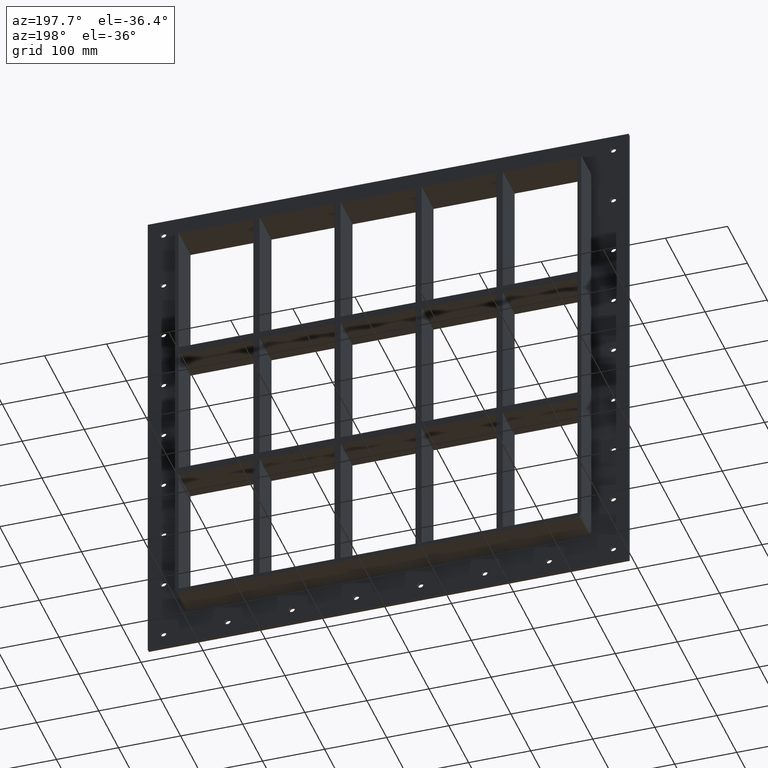
[diagram: clean part render]
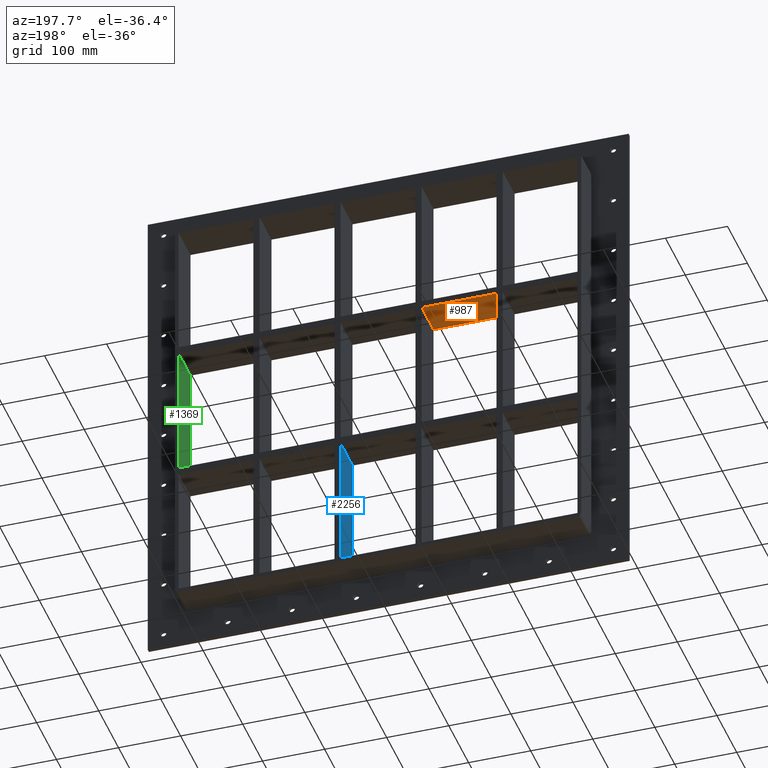
[diagram: same view with three faces highlighted in distinct colors, each labeled with its STEP entity id]
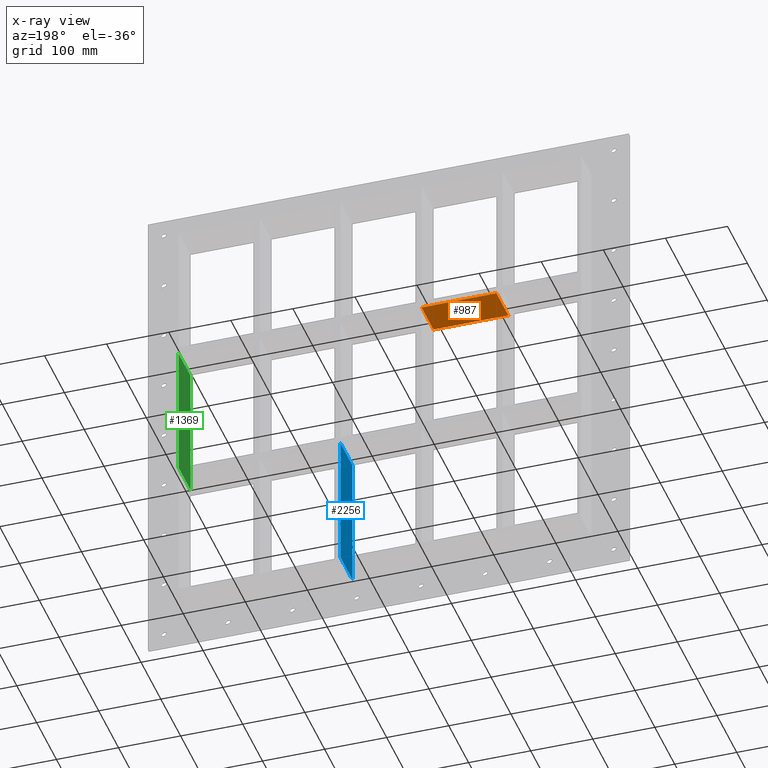
[diagram: x-ray of the same camera — body ghosted, the three highlighted faces saturated]
A machine part, auxiliary view with three faces highlighted in distinct colors.
The next image is the same camera in x-ray (body ghosted, the three faces saturated) — at least one of them is partly hidden behind the body in this view.
Their STEP definitions:

[orange] entity #987 — the highlighted planar face has unit normal (0, 0, -1).
#948=CARTESIAN_POINT('',(321.25,-3.0,108.99999999999069));
#949=DIRECTION('',(0.0,0.0,-1.0));
#950=DIRECTION('',(-1.0,0.0,0.0));
#951=AXIS2_PLACEMENT_3D('',#948,#949,#950);
#952=PLANE('',#951);
#953=CARTESIAN_POINT('',(-70.250000000001407,-3.0,108.99999999999068));
#954=VERTEX_POINT('',#953);
#955=CARTESIAN_POINT('',(-70.250000000001407,57.0,108.99999999999068));
#956=VERTEX_POINT('',#955);
#957=CARTESIAN_POINT('',(-70.25000000000135,-3.0,108.99999999999068));
#958=DIRECTION('',(0.0,1.0,0.0));
#959=VECTOR('',#958,60.0);
#960=LINE('',#957,#959);
#961=EDGE_CURVE('',#954,#956,#960,.T.);
#962=ORIENTED_EDGE('',*,*,#961,.F.);
#963=CARTESIAN_POINT('',(-190.75000000000728,-3.0,108.99999999999068));
#964=VERTEX_POINT('',#963);
#965=CARTESIAN_POINT('',(-70.250000000001421,-3.0,108.99999999999068));
#966=DIRECTION('',(-1.0,0.0,0.0));
#967=VECTOR('',#966,120.50000000000585);
#968=LINE('',#965,#967);
#969=EDGE_CURVE('',#954,#964,#968,.T.);
#970=ORIENTED_EDGE('',*,*,#969,.T.);
#971=CARTESIAN_POINT('',(-190.75000000000728,57.0,108.99999999999068));
#972=VERTEX_POINT('',#971);
#973=CARTESIAN_POINT('',(-190.75000000000728,57.0,108.99999999999068));
#974=DIRECTION('',(0.0,-1.0,0.0));
#975=VECTOR('',#974,60.0);
#976=LINE('',#973,#975);
#977=EDGE_CURVE('',#972,#964,#976,.T.);
#978=ORIENTED_EDGE('',*,*,#977,.F.);
#979=CARTESIAN_POINT('',(-70.250000000001421,57.0,108.99999999999068));
#980=DIRECTION('',(-1.0,0.0,0.0));
#981=VECTOR('',#980,120.50000000000585);
#982=LINE('',#979,#981);
#983=EDGE_CURVE('',#956,#972,#982,.T.);
#984=ORIENTED_EDGE('',*,*,#983,.F.);
#985=EDGE_LOOP('',(#962,#970,#978,#984));
#986=FACE_OUTER_BOUND('',#985,.T.);
#987=ADVANCED_FACE('',(#986),#952,.T.);

[blue] entity #2256 — the highlighted planar face has unit normal (-1, 0, 0).
#1978=CARTESIAN_POINT('',(60.249999999998707,57.0,-339.00000000000006));
#1979=VERTEX_POINT('',#1978);
#1980=CARTESIAN_POINT('',(60.249999999998678,57.0,-121.00000000000932));
#1981=VERTEX_POINT('',#1980);
#1982=CARTESIAN_POINT('',(60.249999999998707,57.0,-339.00000000000006));
#1983=DIRECTION('',(0.0,0.0,1.0));
#1984=VECTOR('',#1983,217.99999999999073);
#1985=LINE('',#1982,#1984);
#1986=EDGE_CURVE('',#1979,#1981,#1985,.T.);
#2226=CARTESIAN_POINT('',(60.249999999998707,-3.0,-339.00000000000006));
#2227=DIRECTION('',(-1.0,0.0,0.0));
#2228=DIRECTION('',(0.0,0.0,1.0));
#2229=AXIS2_PLACEMENT_3D('',#2226,#2227,#2228);
#2230=PLANE('',#2229);
#2231=CARTESIAN_POINT('',(60.249999999998678,-3.0,-121.00000000000932));
#2232=VERTEX_POINT('',#2231);
#2233=CARTESIAN_POINT('',(60.249999999998678,57.0,-121.00000000000931));
#2234=DIRECTION('',(0.0,-1.0,0.0));
#2235=VECTOR('',#2234,60.0);
#2236=LINE('',#2233,#2235);
#2237=EDGE_CURVE('',#1981,#2232,#2236,.T.);
#2238=ORIENTED_EDGE('',*,*,#2237,.F.);
#2239=ORIENTED_EDGE('',*,*,#1986,.F.);
#2240=CARTESIAN_POINT('',(60.249999999998707,-3.0,-339.00000000000006));
#2241=VERTEX_POINT('',#2240);
#2242=CARTESIAN_POINT('',(60.249999999998707,-3.0,-339.00000000000006));
#2243=DIRECTION('',(0.0,1.0,0.0));
#2244=VECTOR('',#2243,60.000000000000007);
#2245=LINE('',#2242,#2244);
#2246=EDGE_CURVE('',#2241,#1979,#2245,.T.);
#2247=ORIENTED_EDGE('',*,*,#2246,.F.);
#2248=CARTESIAN_POINT('',(60.249999999998707,-3.0,-339.00000000000006));
#2249=DIRECTION('',(0.0,0.0,1.0));
#2250=VECTOR('',#2249,217.99999999999073);
#2251=LINE('',#2248,#2250);
#2252=EDGE_CURVE('',#2241,#2232,#2251,.T.);
#2253=ORIENTED_EDGE('',*,*,#2252,.T.);
#2254=EDGE_LOOP('',(#2238,#2239,#2247,#2253));
#2255=FACE_OUTER_BOUND('',#2254,.T.);
#2256=ADVANCED_FACE('',(#2255),#2230,.T.);

[green] entity #1369 — the highlighted planar face has unit normal (1, 0, 0).
#1043=CARTESIAN_POINT('',(321.25,57.0,108.99999999999069));
#1044=VERTEX_POINT('',#1043);
#1051=CARTESIAN_POINT('',(321.25,-3.0,108.99999999999069));
#1052=VERTEX_POINT('',#1051);
#1053=CARTESIAN_POINT('',(321.25,-3.0,108.99999999999068));
#1054=DIRECTION('',(0.0,1.0,0.0));
#1055=VECTOR('',#1054,60.000000000000007);
#1056=LINE('',#1053,#1055);
#1057=EDGE_CURVE('',#1052,#1044,#1056,.T.);
#1339=CARTESIAN_POINT('',(321.25,0.0,339.00000000000006));
#1340=DIRECTION('',(1.0,0.0,0.0));
#1341=DIRECTION('',(0.0,0.0,-1.0));
#1342=AXIS2_PLACEMENT_3D('',#1339,#1340,#1341);
#1343=PLANE('',#1342);
#1344=ORIENTED_EDGE('',*,*,#1057,.T.);
#1345=CARTESIAN_POINT('',(321.25,57.0,-109.00000000000006));
#1346=VERTEX_POINT('',#1345);
#1347=CARTESIAN_POINT('',(321.25,57.0,-109.00000000000006));
#1348=DIRECTION('',(0.0,0.0,1.0));
#1349=VECTOR('',#1348,217.99999999999073);
#1350=LINE('',#1347,#1349);
#1351=EDGE_CURVE('',#1346,#1044,#1350,.T.);
#1352=ORIENTED_EDGE('',*,*,#1351,.F.);
#1353=CARTESIAN_POINT('',(321.24999999999994,-3.0,-109.00000000000006));
#1354=VERTEX_POINT('',#1353);
#1355=CARTESIAN_POINT('',(321.25,57.000000000000007,-109.00000000000006));
#1356=DIRECTION('',(0.0,-1.0,0.0));
#1357=VECTOR('',#1356,60.000000000000007);
#1358=LINE('',#1355,#1357);
#1359=EDGE_CURVE('',#1346,#1354,#1358,.T.);
#1360=ORIENTED_EDGE('',*,*,#1359,.T.);
#1361=CARTESIAN_POINT('',(321.25,-3.0,108.99999999999069));
#1362=DIRECTION('',(0.0,0.0,-1.0));
#1363=VECTOR('',#1362,217.99999999999073);
#1364=LINE('',#1361,#1363);
#1365=EDGE_CURVE('',#1052,#1354,#1364,.T.);
#1366=ORIENTED_EDGE('',*,*,#1365,.F.);
#1367=EDGE_LOOP('',(#1344,#1352,#1360,#1366));
#1368=FACE_OUTER_BOUND('',#1367,.T.);
#1369=ADVANCED_FACE('',(#1368),#1343,.F.);